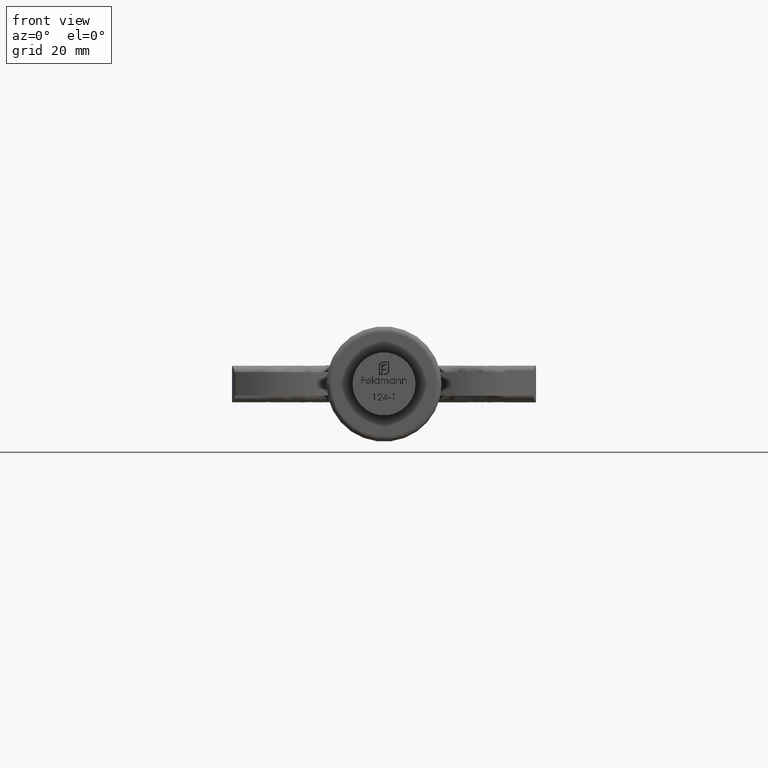
[diagram: clean part render]
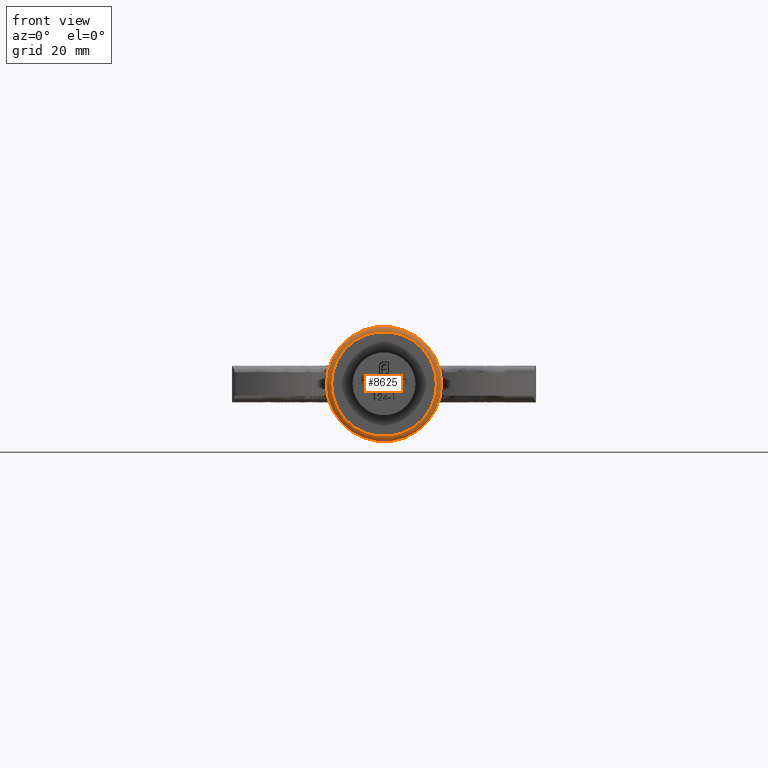
[diagram: same view with one face highlighted and labeled with its STEP entity id]
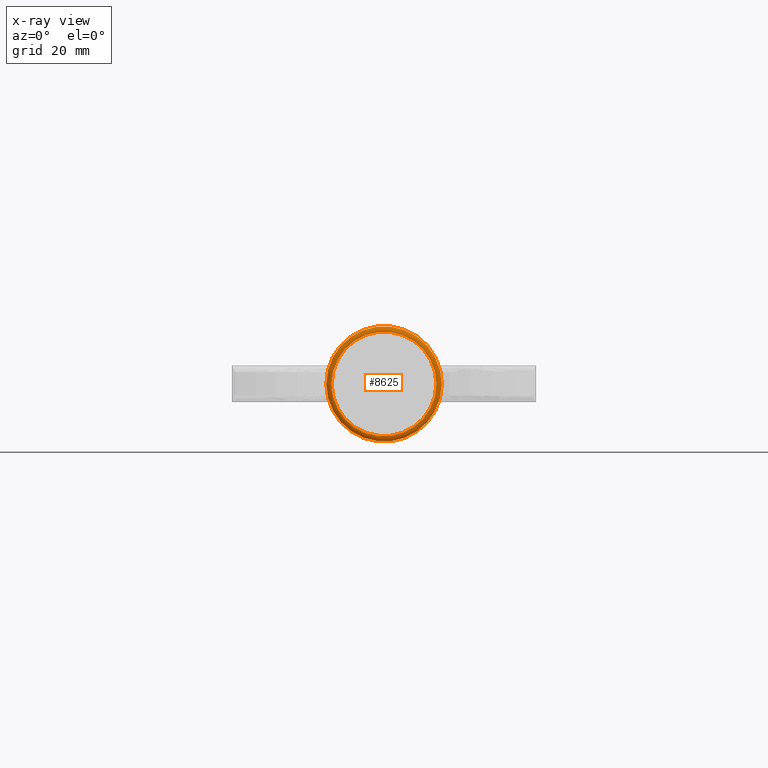
[diagram: x-ray of the same camera — body ghosted, the highlighted face saturated]
A machine part, front view. The second image highlights one B-rep face of the part: STEP entity #8625.
The next image is the same camera in x-ray: the body ghosted, the highlighted face saturated — about 0% of this face is hidden behind the body in this view.
In plain terms, the highlighted toroidal blend (fillet) surface has major radius 10 mm and minor (blend) radius 1 mm.
Its self-contained STEP definition (entity closure, byte-faithful):
#68 = FACE_OUTER_BOUND ( 'NONE', #14727, .T. ) ;
#468 = DIRECTION ( 'NONE',  ( 1.864089233166492342E-18, -1.000000000000000000, 0.000000000000000000 ) ) ;
#973 = CIRCLE ( 'NONE', #17663, 11.00000000000001243 ) ;
#1494 = DIRECTION ( 'NONE',  ( -1.864089233166492342E-18, 1.000000000000000000, -0.000000000000000000 ) ) ;
#1825 = CARTESIAN_POINT ( 'NONE',  ( -2.609724926433089201E-17, 14.00000000000000178, 0.000000000000000000 ) ) ;
#2736 = ORIENTED_EDGE ( 'NONE', *, *, #18942, .F. ) ;
#3045 = DIRECTION ( 'NONE',  ( -1.000000000000000000, 0.000000000000000000, 0.000000000000000000 ) ) ;
#3186 = CARTESIAN_POINT ( 'NONE',  ( -2.609724926433089201E-17, 14.00000000000000178, 0.000000000000000000 ) ) ;
#6040 = DIRECTION ( 'NONE',  ( -1.000000000000000000, -1.864089233166492342E-18, 0.000000000000000000 ) ) ;
#6366 = CIRCLE ( 'NONE', #9300, 10.00000000000001243 ) ;
#6580 = VERTEX_POINT ( 'NONE', #7427 ) ;
#6829 = VERTEX_POINT ( 'NONE', #10654 ) ;
#6998 = AXIS2_PLACEMENT_3D ( 'NONE', #1825, #15439, #6040 ) ;
#7427 = CARTESIAN_POINT ( 'NONE',  ( -11.00000000000001243, 14.00000000000000178, 0.000000000000000000 ) ) ;
#7711 = FACE_OUTER_BOUND ( 'NONE', #9192, .T. ) ;
#8078 = CARTESIAN_POINT ( 'NONE',  ( -2.423316003116439620E-17, 13.00000000000000178, 0.000000000000000000 ) ) ;
#8625 = ADVANCED_FACE ( 'NONE', ( #7711, #68 ), #12031, .T. ) ;
#9192 = EDGE_LOOP ( 'NONE', ( #2736 ) ) ;
#9300 = AXIS2_PLACEMENT_3D ( 'NONE', #8078, #468, #16977 ) ;
#10654 = CARTESIAN_POINT ( 'NONE',  ( -10.00000000000001243, 13.00000000000000178, 0.000000000000000000 ) ) ;
#11069 = EDGE_CURVE ( 'NONE', #6580, #6580, #973, .T. ) ;
#12031 = TOROIDAL_SURFACE ( 'NONE', #6998, 10.00000000000001243, 1.000000000000000000 ) ;
#13254 = ORIENTED_EDGE ( 'NONE', *, *, #11069, .F. ) ;
#14727 = EDGE_LOOP ( 'NONE', ( #13254 ) ) ;
#15439 = DIRECTION ( 'NONE',  ( -1.864089233166492342E-18, 1.000000000000000000, -0.000000000000000000 ) ) ;
#16977 = DIRECTION ( 'NONE',  ( -1.000000000000000000, 0.000000000000000000, 0.000000000000000000 ) ) ;
#17663 = AXIS2_PLACEMENT_3D ( 'NONE', #3186, #1494, #3045 ) ;
#18942 = EDGE_CURVE ( 'NONE', #6829, #6829, #6366, .T. ) ;